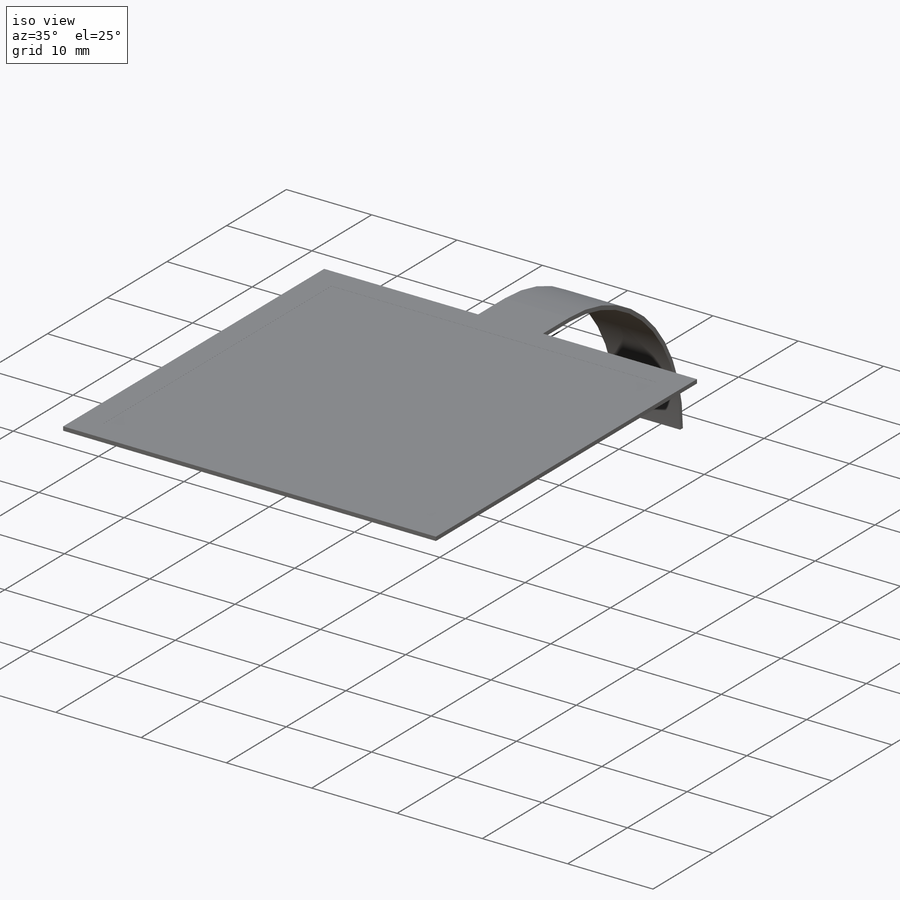
[diagram: iso view]
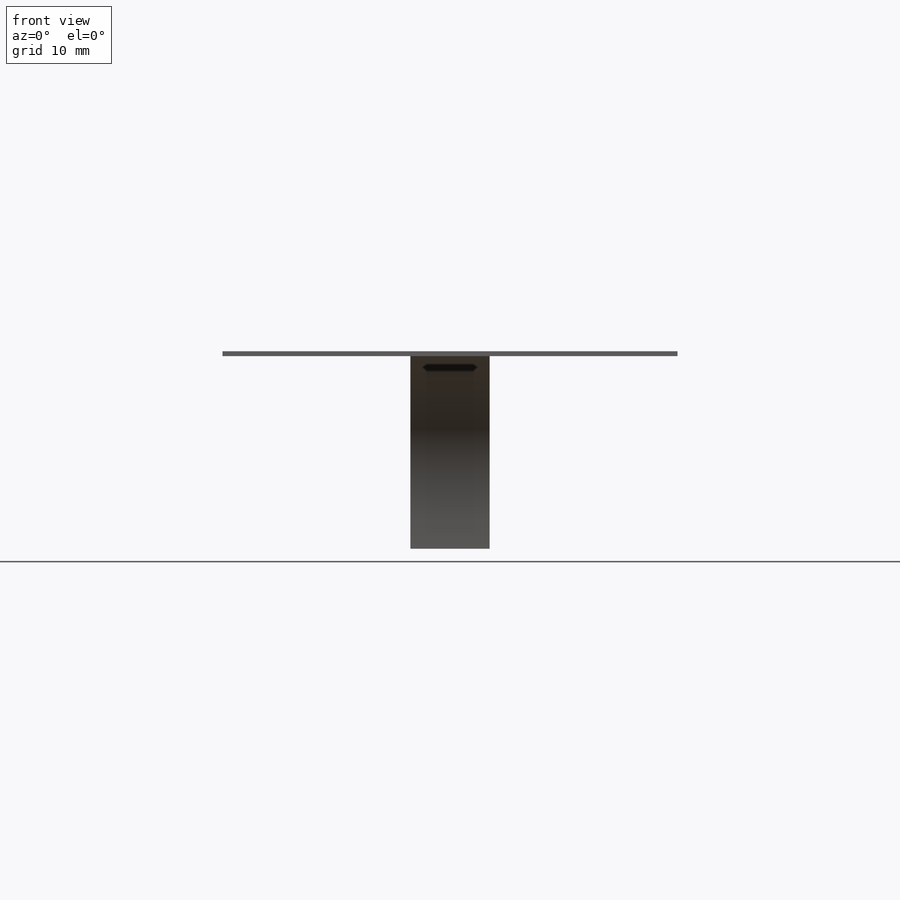
[diagram: front view]
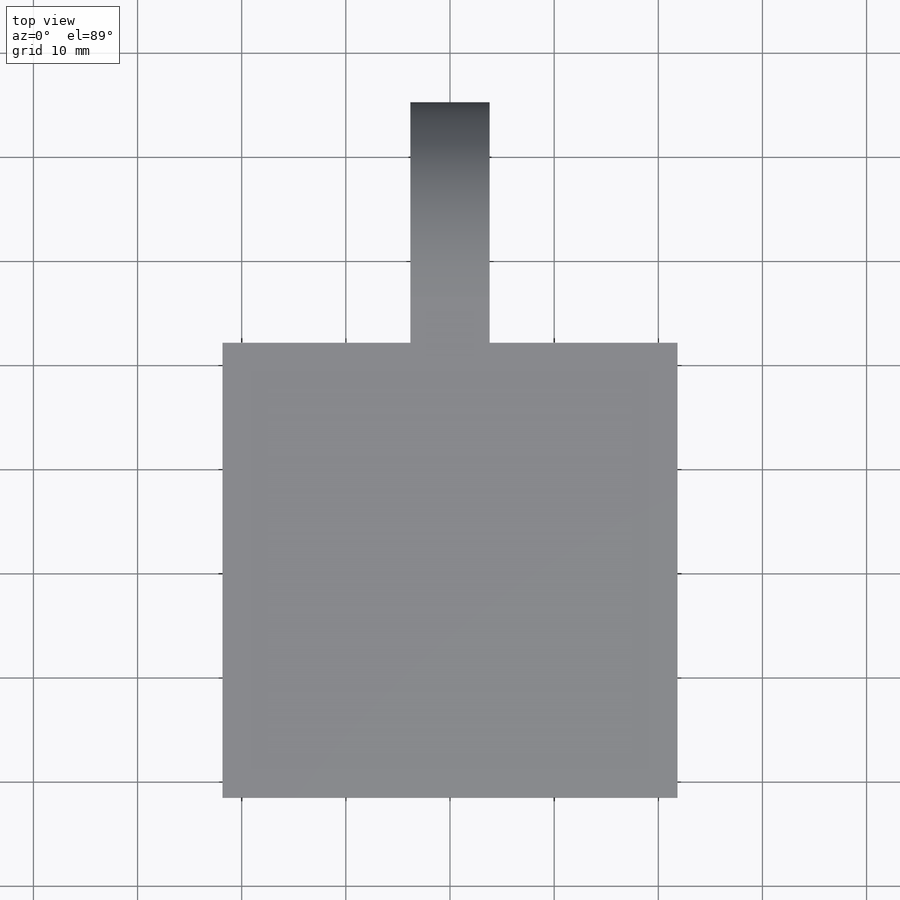
[diagram: top view]
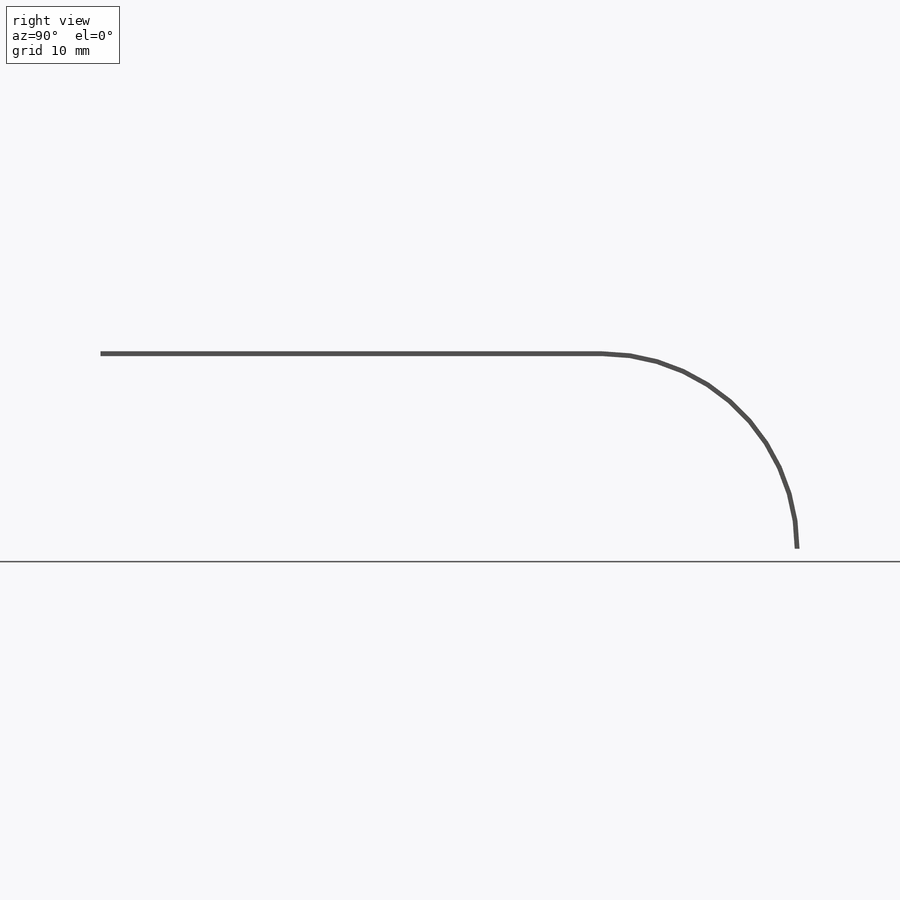
[diagram: right view]
SOLIDWORKS PART (.sldprt)
format: sldprt  version: not decoded by parser v0  size: 244,224 bytes
history: native  units: mm
features: sketch x4, extrude x2, cut_extrude x2, material x1 (+16 scaffold rows collapsed)
feature tree (25):
  scaffold x16  (default folders/planes/origin — collapsed)
  material  "Material <not specified>"
  sketch  "Sketch1"  dims[D1=43.7mm D2=43.7mm D3=7.6mm D4=83.8mm]
  extrude  "Boss-Extrude1"  Depth=0.46mm
  sketch  "Sketch2"  dims[D1=38.1mm]
  cut_extrude  "Cut-Extrude1"  Depth=0.01mm
  sketch  "Sketch3"  dims[D1=0.46mm]
  extrude  "Boss-Extrude2"  Depth=7.6mm
  sketch  "Sketch4"
  cut_extrude  "Cut-Extrude2"  Depth=7.6mm
decode coverage: 7 of 8 modeling features carry decoded parameters
note: suppression state not decoded; provenance and decode notes live in map.json
